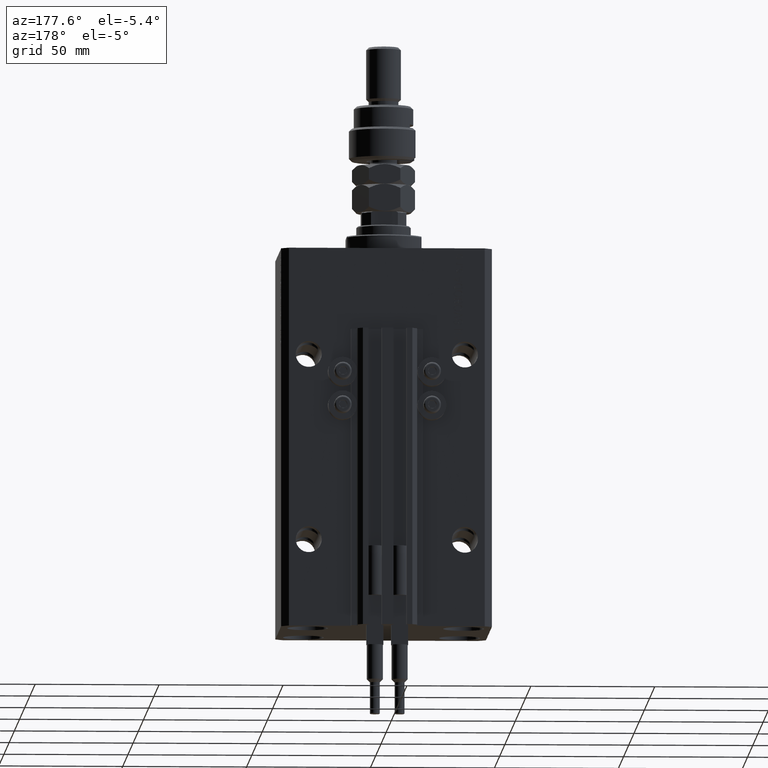
[diagram: clean part render]
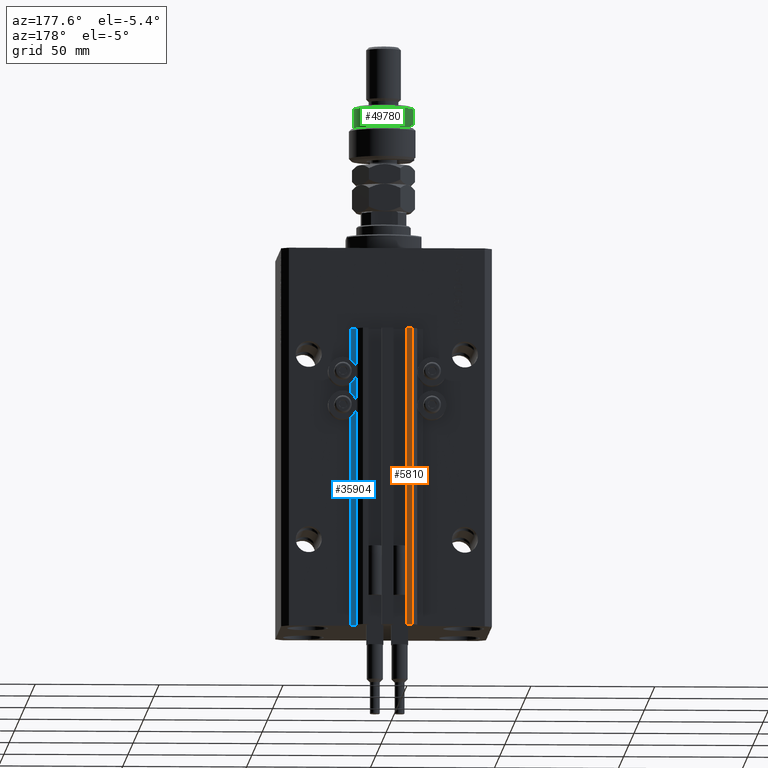
[diagram: same view with three faces highlighted in distinct colors, each labeled with its STEP entity id]
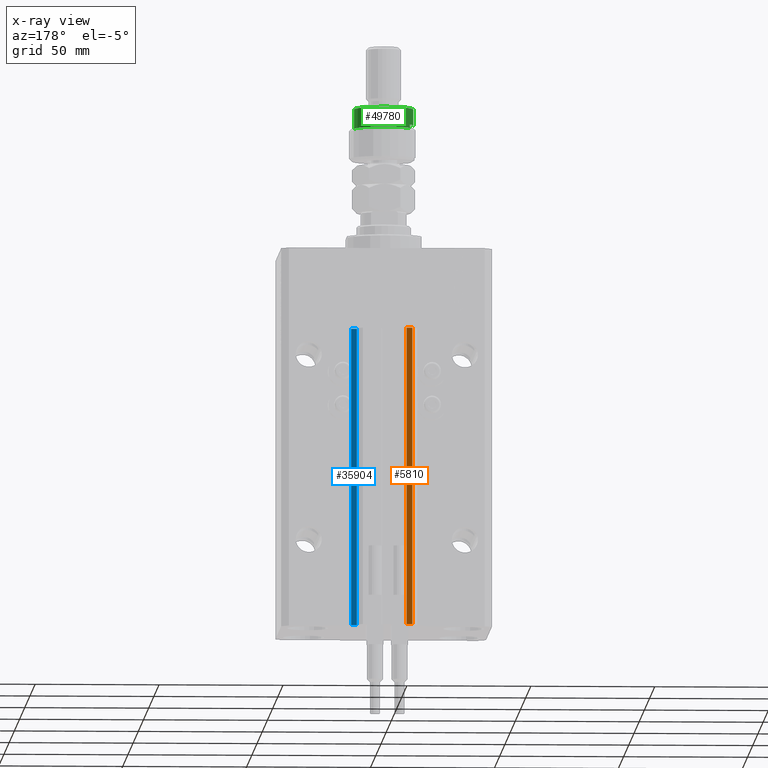
[diagram: x-ray of the same camera — body ghosted, the three highlighted faces saturated]
A machine part, auxiliary view with three faces highlighted in distinct colors.
The next image is the same camera in x-ray (body ghosted, the three faces saturated) — at least one of them is partly hidden behind the body in this view.
Their STEP definitions:

[orange] entity #5810 — the highlighted planar face has unit normal (0, 1, 0).
#13 = EDGE_CURVE ( 'NONE', #37311, #22012, #35815, .T. ) ;
#3473 = ORIENTED_EDGE ( 'NONE', *, *, #23906, .T. ) ;
#4724 = EDGE_LOOP ( 'NONE', ( #22847, #35146, #5951, #3473 ) ) ;
#5233 = CARTESIAN_POINT ( 'NONE',  ( -7.650000000000002132, 39.49999999999999289, -153.0000000000000000 ) ) ;
#5810 = ADVANCED_FACE ( 'NONE', ( #36166 ), #48218, .T. ) ;
#5951 = ORIENTED_EDGE ( 'NONE', *, *, #13, .T. ) ;
#6043 = CARTESIAN_POINT ( 'NONE',  ( -10.00000000000000000, 39.49999999999999289, -153.0000000000000000 ) ) ;
#8901 = VECTOR ( 'NONE', #21983, 1000.000000000000000 ) ;
#12798 = VERTEX_POINT ( 'NONE', #32309 ) ;
#14659 = VECTOR ( 'NONE', #37684, 1000.000000000000000 ) ;
#19105 = CARTESIAN_POINT ( 'NONE',  ( -10.00000000000000000, 39.49999999999999289, -153.0000000000000000 ) ) ;
#19112 = CARTESIAN_POINT ( 'NONE',  ( -7.650000000000002132, 39.49999999999999289, -153.0000000000000000 ) ) ;
#21785 = EDGE_CURVE ( 'NONE', #37311, #23756, #24416, .T. ) ;
#21983 = DIRECTION ( 'NONE',  ( 0.000000000000000000, 0.000000000000000000, 1.000000000000000000 ) ) ;
#22012 = VERTEX_POINT ( 'NONE', #19105 ) ;
#22847 = ORIENTED_EDGE ( 'NONE', *, *, #44422, .F. ) ;
#23040 = AXIS2_PLACEMENT_3D ( 'NONE', #5233, #29781, #30054 ) ;
#23756 = VERTEX_POINT ( 'NONE', #47187 ) ;
#23906 = EDGE_CURVE ( 'NONE', #22012, #12798, #50498, .T. ) ;
#24416 = LINE ( 'NONE', #29820, #14659 ) ;
#29781 = DIRECTION ( 'NONE',  ( 0.000000000000000000, 1.000000000000000000, -0.000000000000000000 ) ) ;
#29820 = CARTESIAN_POINT ( 'NONE',  ( -7.650000000000002132, 39.49999999999999289, -153.0000000000000000 ) ) ;
#30054 = DIRECTION ( 'NONE',  ( 0.000000000000000000, 0.000000000000000000, 1.000000000000000000 ) ) ;
#31631 = CARTESIAN_POINT ( 'NONE',  ( -7.650000000000002132, 39.49999999999999289, -153.0000000000000000 ) ) ;
#32309 = CARTESIAN_POINT ( 'NONE',  ( -10.00000000000000000, 39.49999999999999289, -33.00000000000000000 ) ) ;
#33248 = VECTOR ( 'NONE', #44352, 1000.000000000000000 ) ;
#35047 = DIRECTION ( 'NONE',  ( -1.000000000000000000, 0.000000000000000000, 0.000000000000000000 ) ) ;
#35146 = ORIENTED_EDGE ( 'NONE', *, *, #21785, .F. ) ;
#35513 = CARTESIAN_POINT ( 'NONE',  ( -7.650000000000002132, 39.49999999999999289, -33.00000000000000000 ) ) ;
#35815 = LINE ( 'NONE', #31631, #36326 ) ;
#36166 = FACE_OUTER_BOUND ( 'NONE', #4724, .T. ) ;
#36326 = VECTOR ( 'NONE', #35047, 1000.000000000000000 ) ;
#37236 = LINE ( 'NONE', #35513, #33248 ) ;
#37311 = VERTEX_POINT ( 'NONE', #19112 ) ;
#37684 = DIRECTION ( 'NONE',  ( 0.000000000000000000, 0.000000000000000000, 1.000000000000000000 ) ) ;
#44352 = DIRECTION ( 'NONE',  ( -1.000000000000000000, 0.000000000000000000, 0.000000000000000000 ) ) ;
#44422 = EDGE_CURVE ( 'NONE', #23756, #12798, #37236, .T. ) ;
#47187 = CARTESIAN_POINT ( 'NONE',  ( -7.650000000000002132, 39.49999999999999289, -33.00000000000000000 ) ) ;
#48218 = PLANE ( 'NONE',  #23040 ) ;
#50498 = LINE ( 'NONE', #6043, #8901 ) ;

[blue] entity #35904 — the highlighted planar face has unit normal (0, 1, 0).
#2231 = CARTESIAN_POINT ( 'NONE',  ( 14.49999999999999645, 34.00000000000001421, -153.0000000000000000 ) ) ;
#3729 = LINE ( 'NONE', #42988, #39285 ) ;
#5307 = EDGE_CURVE ( 'NONE', #48869, #34866, #10104, .T. ) ;
#9806 = FACE_OUTER_BOUND ( 'NONE', #37385, .T. ) ;
#10104 = LINE ( 'NONE', #37567, #19688 ) ;
#11735 = ORIENTED_EDGE ( 'NONE', *, *, #49448, .T. ) ;
#15925 = AXIS2_PLACEMENT_3D ( 'NONE', #2231, #29943, #37270 ) ;
#17651 = ORIENTED_EDGE ( 'NONE', *, *, #5307, .T. ) ;
#17918 = PLANE ( 'NONE',  #15925 ) ;
#18451 = EDGE_CURVE ( 'NONE', #22611, #34866, #49294, .T. ) ;
#19688 = VECTOR ( 'NONE', #49876, 1000.000000000000000 ) ;
#21116 = LINE ( 'NONE', #33385, #35775 ) ;
#22611 = VERTEX_POINT ( 'NONE', #25761 ) ;
#23405 = CARTESIAN_POINT ( 'NONE',  ( 12.20000000000000107, 34.00000000000001421, -153.0000000000000000 ) ) ;
#25761 = CARTESIAN_POINT ( 'NONE',  ( 14.49999999999999645, 34.00000000000001421, -33.00000000000000000 ) ) ;
#27510 = EDGE_CURVE ( 'NONE', #47683, #22611, #21116, .T. ) ;
#27635 = CARTESIAN_POINT ( 'NONE',  ( 14.49999999999999645, 34.00000000000001421, -153.0000000000000000 ) ) ;
#29943 = DIRECTION ( 'NONE',  ( 0.000000000000000000, 1.000000000000000000, -0.000000000000000000 ) ) ;
#33385 = CARTESIAN_POINT ( 'NONE',  ( 14.49999999999999645, 34.00000000000001421, -153.0000000000000000 ) ) ;
#34693 = CARTESIAN_POINT ( 'NONE',  ( 12.20000000000000107, 34.00000000000001421, -33.00000000000000000 ) ) ;
#34866 = VERTEX_POINT ( 'NONE', #34693 ) ;
#35368 = DIRECTION ( 'NONE',  ( -1.000000000000000000, 0.000000000000000000, 0.000000000000000000 ) ) ;
#35775 = VECTOR ( 'NONE', #49382, 1000.000000000000000 ) ;
#35904 = ADVANCED_FACE ( 'NONE', ( #9806 ), #17918, .T. ) ;
#35946 = VECTOR ( 'NONE', #44592, 1000.000000000000000 ) ;
#37270 = DIRECTION ( 'NONE',  ( 0.000000000000000000, 0.000000000000000000, 1.000000000000000000 ) ) ;
#37385 = EDGE_LOOP ( 'NONE', ( #41133, #49052, #11735, #17651 ) ) ;
#37567 = CARTESIAN_POINT ( 'NONE',  ( 12.20000000000000107, 34.00000000000001421, -153.0000000000000000 ) ) ;
#39285 = VECTOR ( 'NONE', #35368, 1000.000000000000000 ) ;
#41133 = ORIENTED_EDGE ( 'NONE', *, *, #18451, .F. ) ;
#41421 = CARTESIAN_POINT ( 'NONE',  ( 14.49999999999999645, 34.00000000000001421, -33.00000000000000000 ) ) ;
#42988 = CARTESIAN_POINT ( 'NONE',  ( 14.49999999999999645, 34.00000000000001421, -153.0000000000000000 ) ) ;
#44592 = DIRECTION ( 'NONE',  ( -1.000000000000000000, 0.000000000000000000, 0.000000000000000000 ) ) ;
#47683 = VERTEX_POINT ( 'NONE', #27635 ) ;
#48869 = VERTEX_POINT ( 'NONE', #23405 ) ;
#49052 = ORIENTED_EDGE ( 'NONE', *, *, #27510, .F. ) ;
#49294 = LINE ( 'NONE', #41421, #35946 ) ;
#49382 = DIRECTION ( 'NONE',  ( 0.000000000000000000, 0.000000000000000000, 1.000000000000000000 ) ) ;
#49448 = EDGE_CURVE ( 'NONE', #47683, #48869, #3729, .T. ) ;
#49876 = DIRECTION ( 'NONE',  ( 0.000000000000000000, 0.000000000000000000, 1.000000000000000000 ) ) ;

[green] entity #49780 — the highlighted cylindrical surface (edge-blend (fillet) strip) has radius 12 mm, axis along (-0, -0, -1).
#1394 = CARTESIAN_POINT ( 'NONE',  ( 12.00000000000000178, 1.469576158976824144E-15, 22.00000000000000000 ) ) ;
#2384 = DIRECTION ( 'NONE',  ( -1.000000000000000000, 0.000000000000000000, 0.000000000000000000 ) ) ;
#2902 = CARTESIAN_POINT ( 'NONE',  ( 0.000000000000000000, 0.000000000000000000, 14.50000000000000000 ) ) ;
#3560 = CARTESIAN_POINT ( 'NONE',  ( -10.39230484541326760, 6.000000000000000000, 13.00000000000000000 ) ) ;
#4560 = DIRECTION ( 'NONE',  ( -0.000000000000000000, -0.000000000000000000, -1.000000000000000000 ) ) ;
#5241 = ORIENTED_EDGE ( 'NONE', *, *, #31658, .F. ) ;
#5700 = VERTEX_POINT ( 'NONE', #15011 ) ;
#6366 = VECTOR ( 'NONE', #4560, 1000.000000000000000 ) ;
#6832 = FACE_OUTER_BOUND ( 'NONE', #32874, .T. ) ;
#7347 = DIRECTION ( 'NONE',  ( 0.000000000000000000, 0.000000000000000000, -1.000000000000000000 ) ) ;
#7427 = CIRCLE ( 'NONE', #47533, 12.00000000000000178 ) ;
#9419 = VERTEX_POINT ( 'NONE', #3560 ) ;
#10161 = CARTESIAN_POINT ( 'NONE',  ( -10.39230484541326760, 6.000000000000000000, 22.00000000000000000 ) ) ;
#13120 = ORIENTED_EDGE ( 'NONE', *, *, #46629, .F. ) ;
#13425 = LINE ( 'NONE', #1394, #6366 ) ;
#13715 = DIRECTION ( 'NONE',  ( -0.000000000000000000, -0.000000000000000000, -1.000000000000000000 ) ) ;
#13876 = DIRECTION ( 'NONE',  ( 1.000000000000000000, 0.000000000000000000, 0.000000000000000000 ) ) ;
#14076 = LINE ( 'NONE', #10161, #48376 ) ;
#15011 = CARTESIAN_POINT ( 'NONE',  ( -10.39230484541326582, 5.999999999999998224, 14.50000000000000000 ) ) ;
#17416 = CARTESIAN_POINT ( 'NONE',  ( 0.000000000000000000, 0.000000000000000000, 20.99999999999999645 ) ) ;
#18749 = ORIENTED_EDGE ( 'NONE', *, *, #22902, .T. ) ;
#22090 = CARTESIAN_POINT ( 'NONE',  ( -12.00000000000000178, 0.000000000000000000, 22.00000000000000000 ) ) ;
#22902 = EDGE_CURVE ( 'NONE', #40850, #26178, #13425, .T. ) ;
#24598 = VERTEX_POINT ( 'NONE', #31991 ) ;
#25905 = DIRECTION ( 'NONE',  ( -0.000000000000000000, -0.000000000000000000, -1.000000000000000000 ) ) ;
#26101 = DIRECTION ( 'NONE',  ( 0.000000000000000000, 0.000000000000000000, 1.000000000000000000 ) ) ;
#26178 = VERTEX_POINT ( 'NONE', #50427 ) ;
#27946 = ORIENTED_EDGE ( 'NONE', *, *, #49757, .T. ) ;
#28668 = DIRECTION ( 'NONE',  ( 0.000000000000000000, 0.000000000000000000, -1.000000000000000000 ) ) ;
#28699 = ORIENTED_EDGE ( 'NONE', *, *, #38322, .T. ) ;
#29824 = DIRECTION ( 'NONE',  ( 0.000000000000000000, 0.000000000000000000, 1.000000000000000000 ) ) ;
#29933 = LINE ( 'NONE', #22090, #35841 ) ;
#31658 = EDGE_CURVE ( 'NONE', #24598, #5700, #7427, .T. ) ;
#31958 = EDGE_CURVE ( 'NONE', #9419, #5700, #14076, .T. ) ;
#31991 = CARTESIAN_POINT ( 'NONE',  ( -12.00000000000000178, 0.000000000000000000, 14.50000000000000000 ) ) ;
#32874 = EDGE_LOOP ( 'NONE', ( #28699, #18749, #27946, #36032, #5241, #13120 ) ) ;
#35841 = VECTOR ( 'NONE', #13715, 1000.000000000000000 ) ;
#35951 = AXIS2_PLACEMENT_3D ( 'NONE', #49485, #29824, #13876 ) ;
#36032 = ORIENTED_EDGE ( 'NONE', *, *, #31958, .T. ) ;
#38210 = VERTEX_POINT ( 'NONE', #46520 ) ;
#38322 = EDGE_CURVE ( 'NONE', #38210, #40850, #51113, .T. ) ;
#40850 = VERTEX_POINT ( 'NONE', #43459 ) ;
#41040 = AXIS2_PLACEMENT_3D ( 'NONE', #17416, #28668, #44655 ) ;
#42395 = CARTESIAN_POINT ( 'NONE',  ( 0.000000000000000000, 0.000000000000000000, 22.00000000000000000 ) ) ;
#42671 = CYLINDRICAL_SURFACE ( 'NONE', #44336, 12.00000000000000178 ) ;
#43459 = CARTESIAN_POINT ( 'NONE',  ( 12.00000000000000178, 1.469576158976824144E-15, 20.99999999999999645 ) ) ;
#44336 = AXIS2_PLACEMENT_3D ( 'NONE', #42395, #25905, #2384 ) ;
#44655 = DIRECTION ( 'NONE',  ( 1.000000000000000000, 0.000000000000000000, 0.000000000000000000 ) ) ;
#46520 = CARTESIAN_POINT ( 'NONE',  ( -12.00000000000000178, 0.000000000000000000, 20.99999999999999645 ) ) ;
#46629 = EDGE_CURVE ( 'NONE', #38210, #24598, #29933, .T. ) ;
#47533 = AXIS2_PLACEMENT_3D ( 'NONE', #2902, #7347, #50270 ) ;
#48376 = VECTOR ( 'NONE', #26101, 1000.000000000000000 ) ;
#49485 = CARTESIAN_POINT ( 'NONE',  ( 0.000000000000000000, 0.000000000000000000, 13.00000000000000000 ) ) ;
#49757 = EDGE_CURVE ( 'NONE', #26178, #9419, #50989, .T. ) ;
#49780 = ADVANCED_FACE ( 'NONE', ( #6832 ), #42671, .T. ) ;
#50270 = DIRECTION ( 'NONE',  ( -1.000000000000000000, 0.000000000000000000, 0.000000000000000000 ) ) ;
#50427 = CARTESIAN_POINT ( 'NONE',  ( 12.00000000000000178, 1.469576158976824144E-15, 13.00000000000000000 ) ) ;
#50989 = CIRCLE ( 'NONE', #35951, 12.00000000000000178 ) ;
#51113 = CIRCLE ( 'NONE', #41040, 12.00000000000000178 ) ;